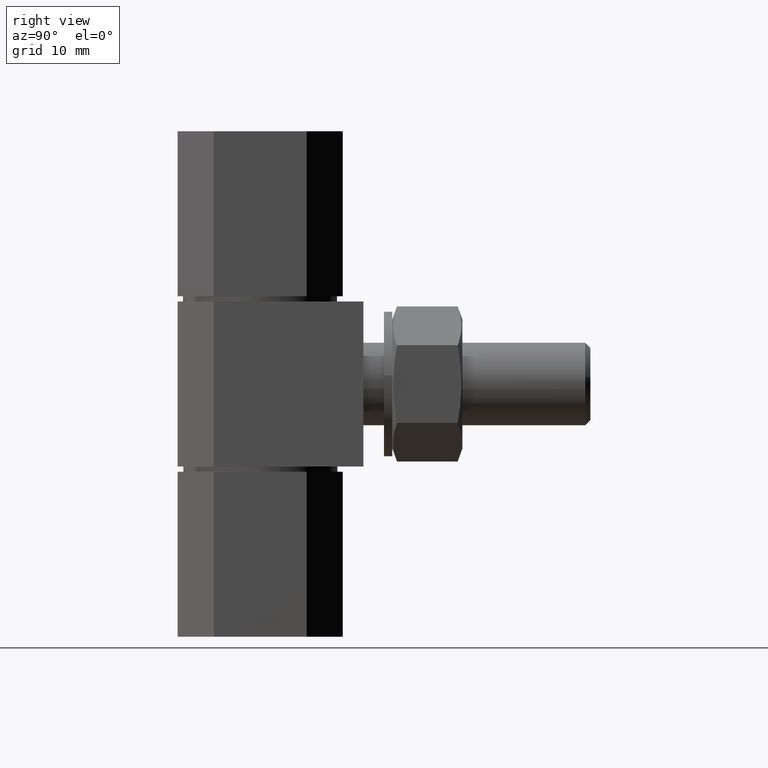
[diagram: clean part render]
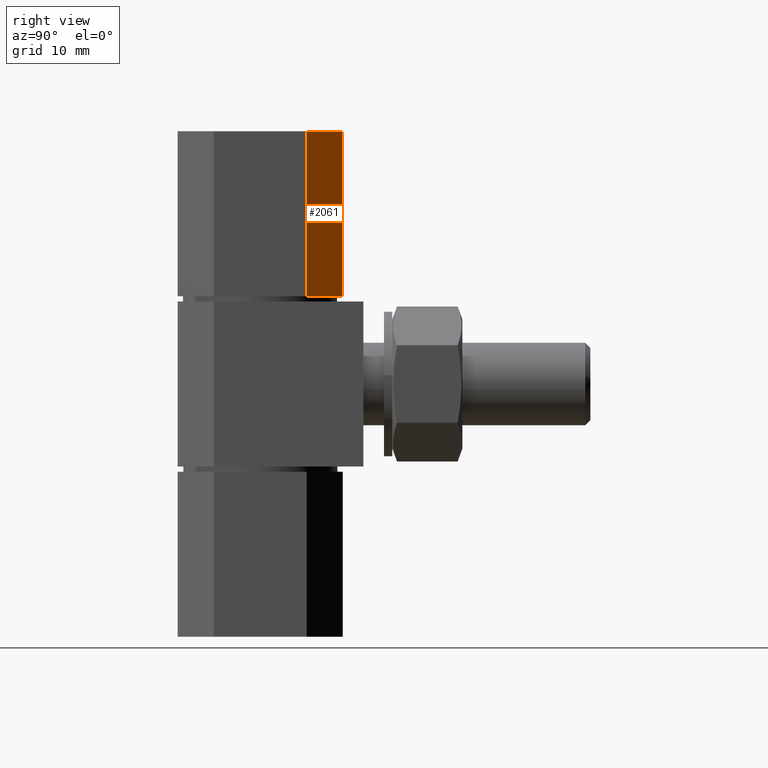
[diagram: same view with one face highlighted and labeled with its STEP entity id]
A machine part, right view. The second image highlights one B-rep face of the part: STEP entity #2061.
In plain terms, the highlighted face is a freeform B-spline surface patch.
Its self-contained STEP definition (entity closure, byte-faithful):
#1925=CARTESIAN_POINT('',(4.500000213738500,-8.000000379979600,0.0));
#1926=VERTEX_POINT('',#1925);
#1953=CARTESIAN_POINT('',(8.000000379979710,-4.500000213738519,0.0));
#1954=VERTEX_POINT('',#1953);
#1960=CARTESIAN_POINT('',(4.500000213738500,-8.000000379979600,0.0));
#1961=CARTESIAN_POINT('',(8.000000379979710,-4.500000213738519,0.0));
#1962=QUASI_UNIFORM_CURVE('',1,(#1960,#1961),.UNSPECIFIED.,.F.,.U.);
#1963=EDGE_CURVE('',#1926,#1954,#1962,.T.);
#2025=CARTESIAN_POINT('',(8.000000379979710,-4.500000213738519,16.000000759959200));
#2026=VERTEX_POINT('',#2025);
#2032=CARTESIAN_POINT('',(8.000000379979710,-4.500000213738519,16.000000759959200));
#2033=CARTESIAN_POINT('',(8.000000379979710,-4.500000213738519,0.0));
#2034=QUASI_UNIFORM_CURVE('',1,(#2032,#2033),.UNSPECIFIED.,.F.,.U.);
#2035=EDGE_CURVE('',#2026,#1954,#2034,.T.);
#2040=CARTESIAN_POINT('',(8.174825303284324,-4.325175290433911,-0.799199949785615));
#2041=CARTESIAN_POINT('',(4.325175384311205,-8.174825209406889,-0.799199949785615));
#2042=CARTESIAN_POINT('',(8.174825303284324,-4.325175290433911,16.799199994489040));
#2043=CARTESIAN_POINT('',(4.325175384311205,-8.174825209406889,16.799199994489040));
#2044=B_SPLINE_SURFACE_WITH_KNOTS('',1,1,((#2040,#2042),(#2041,#2043)),.UNSPECIFIED.,.F.,.F.,.U.,(2,2),(2,2),(0.0,5.444227125800173),(0.0,17.598399944274661),.UNSPECIFIED.);
#2045=ORIENTED_EDGE('',*,*,#1963,.T.);
#2046=ORIENTED_EDGE('',*,*,#2035,.F.);
#2047=CARTESIAN_POINT('',(4.500000213738500,-8.000000379979600,16.000000759959200));
#2048=VERTEX_POINT('',#2047);
#2049=CARTESIAN_POINT('',(4.500000213738500,-8.000000379979600,16.000000759959200));
#2050=CARTESIAN_POINT('',(8.000000379979710,-4.500000213738519,16.000000759959200));
#2051=QUASI_UNIFORM_CURVE('',1,(#2049,#2050),.UNSPECIFIED.,.F.,.U.);
#2052=EDGE_CURVE('',#2048,#2026,#2051,.T.);
#2053=ORIENTED_EDGE('',*,*,#2052,.F.);
#2054=CARTESIAN_POINT('',(4.500000213738500,-8.000000379979600,16.000000759959200));
#2055=CARTESIAN_POINT('',(4.500000213738500,-8.000000379979600,0.0));
#2056=QUASI_UNIFORM_CURVE('',1,(#2054,#2055),.UNSPECIFIED.,.F.,.U.);
#2057=EDGE_CURVE('',#2048,#1926,#2056,.T.);
#2058=ORIENTED_EDGE('',*,*,#2057,.T.);
#2059=EDGE_LOOP('',(#2045,#2046,#2053,#2058));
#2060=FACE_OUTER_BOUND('',#2059,.T.);
#2061=ADVANCED_FACE('',(#2060),#2044,.F.);